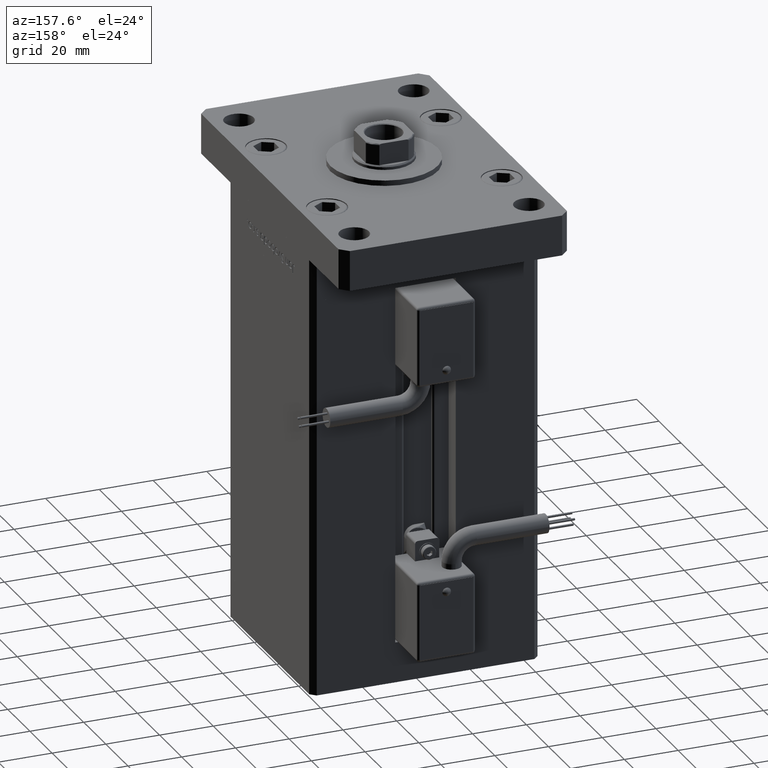
[diagram: clean part render]
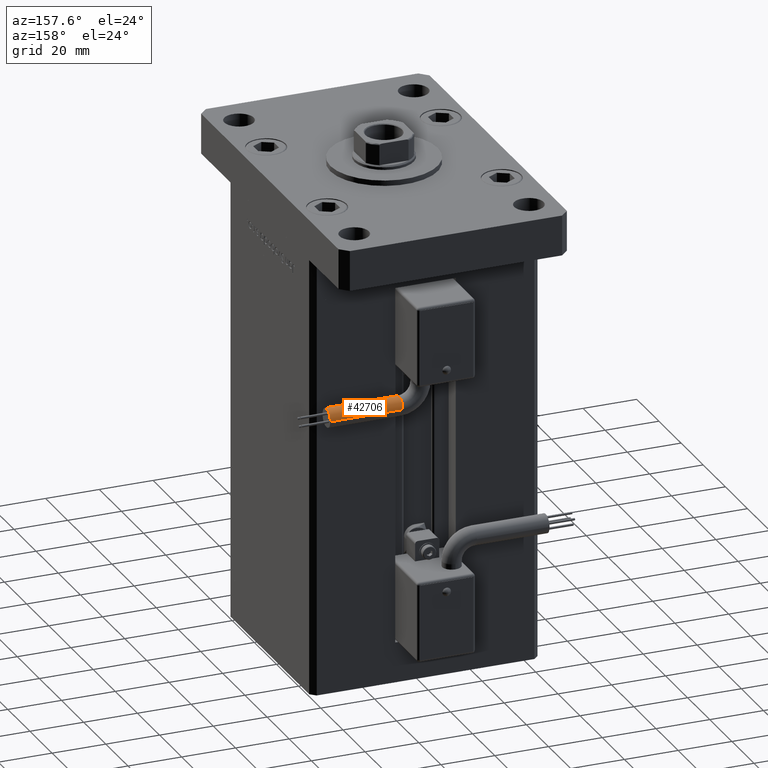
[diagram: same view with one face highlighted and labeled with its STEP entity id]
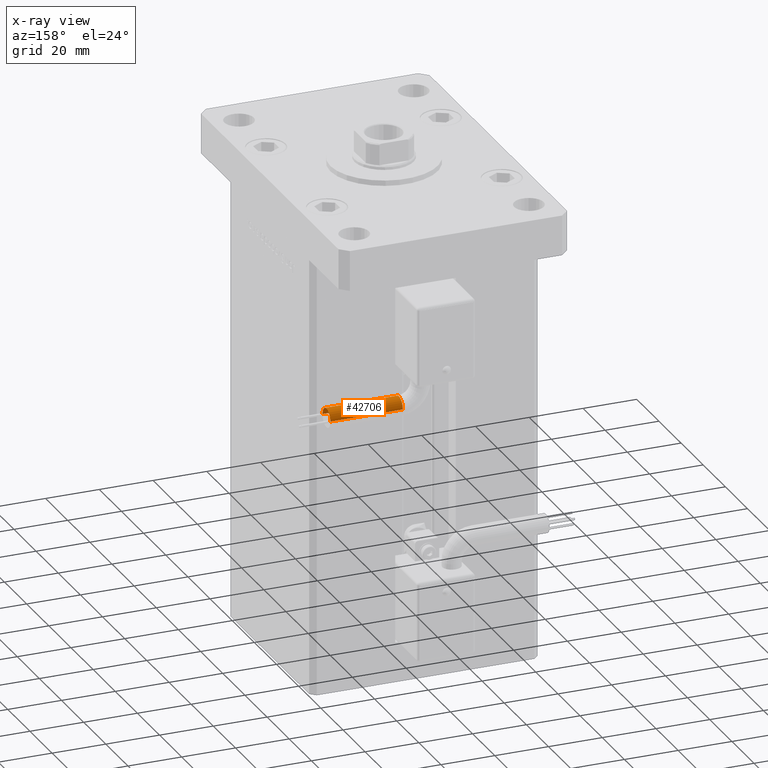
[diagram: x-ray of the same camera — body ghosted, the highlighted face saturated]
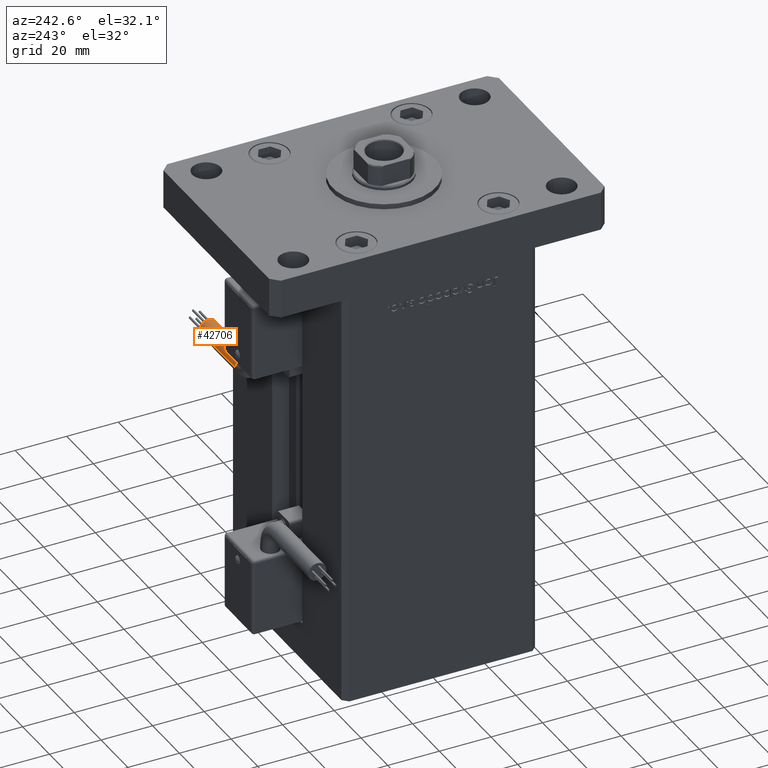
[diagram: same view with one face highlighted and labeled with its STEP entity id]
A machine part, auxiliary view. The second image highlights one B-rep face of the part: STEP entity #42706.
The next image is the same camera in x-ray: the body ghosted, the highlighted face saturated — about 0% of this face is hidden behind the body in this view.
A second angle (auxiliary view) of the same face is appended — the face is thin or edge-on in the first view.
In plain terms, the highlighted cylindrical surface (edge-blend (fillet) strip) has radius 3.5 mm, axis along (1, -0, 0).
Its self-contained STEP definition (entity closure, byte-faithful):
#2065 = ORIENTED_EDGE ( 'NONE', *, *, #8979, .T. ) ;
#2188 = CARTESIAN_POINT ( 'NONE',  ( 40.80000000000000426, 42.00000000000000000, -65.00000000000000000 ) ) ;
#4094 = DIRECTION ( 'NONE',  ( 1.000000000000000000, -2.599999999999999847E-16, 2.220446049250000002E-16 ) ) ;
#4219 = EDGE_LOOP ( 'NONE', ( #17594, #2065, #42347, #41928, #49475 ) ) ;
#6278 = DIRECTION ( 'NONE',  ( 0.000000000000000000, 0.000000000000000000, -1.000000000000000000 ) ) ;
#8681 = CARTESIAN_POINT ( 'NONE',  ( 13.80000000000000071, 45.50000000000000711, -65.00000000000000000 ) ) ;
#8979 = EDGE_CURVE ( 'NONE', #32840, #15725, #11097, .T. ) ;
#11097 = CIRCLE ( 'NONE', #22104, 3.500000000000003109 ) ;
#12693 = LINE ( 'NONE', #8681, #56688 ) ;
#15725 = VERTEX_POINT ( 'NONE', #39714 ) ;
#17594 = ORIENTED_EDGE ( 'NONE', *, *, #50807, .F. ) ;
#19018 = AXIS2_PLACEMENT_3D ( 'NONE', #49826, #45528, #6278 ) ;
#21549 = LINE ( 'NONE', #30433, #37989 ) ;
#22104 = AXIS2_PLACEMENT_3D ( 'NONE', #26114, #48179, #43596 ) ;
#22715 = CYLINDRICAL_SURFACE ( 'NONE', #35424, 3.500000000000003109 ) ;
#24484 = CARTESIAN_POINT ( 'NONE',  ( 40.80000000000000426, 45.50000000000000711, -65.00000000000000000 ) ) ;
#24777 = DIRECTION ( 'NONE',  ( 0.000000000000000000, 0.000000000000000000, -1.000000000000000000 ) ) ;
#26114 = CARTESIAN_POINT ( 'NONE',  ( 13.79999999999999893, 42.00000000000000000, -65.00000000000000000 ) ) ;
#30433 = CARTESIAN_POINT ( 'NONE',  ( 13.79999999999999716, 38.50000000000000000, -65.00000000000000000 ) ) ;
#31604 = DIRECTION ( 'NONE',  ( -4.956352788505158337E-16, -1.000000000000000000, 0.000000000000000000 ) ) ;
#32107 = DIRECTION ( 'NONE',  ( 1.000000000000000000, -2.599999999999999847E-16, 2.220446049250000002E-16 ) ) ;
#32840 = VERTEX_POINT ( 'NONE', #35892 ) ;
#33668 = VERTEX_POINT ( 'NONE', #24484 ) ;
#35424 = AXIS2_PLACEMENT_3D ( 'NONE', #39637, #52825, #31604 ) ;
#35892 = CARTESIAN_POINT ( 'NONE',  ( 13.79999999999999893, 45.50000000000000711, -65.00000000000000000 ) ) ;
#36547 = CARTESIAN_POINT ( 'NONE',  ( 13.79999999999999893, 38.50000000000000000, -65.00000000000000000 ) ) ;
#37336 = AXIS2_PLACEMENT_3D ( 'NONE', #2188, #42261, #24777 ) ;
#37989 = VECTOR ( 'NONE', #4094, 1000.000000000000000 ) ;
#38408 = EDGE_CURVE ( 'NONE', #56689, #54007, #21549, .T. ) ;
#39637 = CARTESIAN_POINT ( 'NONE',  ( 13.79999999999999893, 42.00000000000000000, -65.00000000000000000 ) ) ;
#39714 = CARTESIAN_POINT ( 'NONE',  ( 13.79999999999999893, 41.99999999999999289, -61.50000000000000000 ) ) ;
#39883 = CARTESIAN_POINT ( 'NONE',  ( 40.80000000000000426, 38.50000000000000000, -65.00000000000000000 ) ) ;
#40480 = FACE_OUTER_BOUND ( 'NONE', #4219, .T. ) ;
#41926 = CIRCLE ( 'NONE', #37336, 3.500000000000003109 ) ;
#41928 = ORIENTED_EDGE ( 'NONE', *, *, #38408, .T. ) ;
#42261 = DIRECTION ( 'NONE',  ( 1.000000000000000000, 0.000000000000000000, 2.220446049250000002E-16 ) ) ;
#42347 = ORIENTED_EDGE ( 'NONE', *, *, #48058, .T. ) ;
#42706 = ADVANCED_FACE ( 'NONE', ( #40480 ), #22715, .T. ) ;
#42828 = CIRCLE ( 'NONE', #19018, 3.500000000000003109 ) ;
#43596 = DIRECTION ( 'NONE',  ( 0.000000000000000000, 0.000000000000000000, -1.000000000000000000 ) ) ;
#45528 = DIRECTION ( 'NONE',  ( 1.000000000000000000, 0.000000000000000000, 2.220446049250000002E-16 ) ) ;
#47449 = EDGE_CURVE ( 'NONE', #33668, #54007, #41926, .T. ) ;
#48058 = EDGE_CURVE ( 'NONE', #15725, #56689, #42828, .T. ) ;
#48179 = DIRECTION ( 'NONE',  ( 1.000000000000000000, 0.000000000000000000, 2.220446049250000002E-16 ) ) ;
#49475 = ORIENTED_EDGE ( 'NONE', *, *, #47449, .F. ) ;
#49826 = CARTESIAN_POINT ( 'NONE',  ( 13.79999999999999893, 42.00000000000000000, -65.00000000000000000 ) ) ;
#50807 = EDGE_CURVE ( 'NONE', #32840, #33668, #12693, .T. ) ;
#52825 = DIRECTION ( 'NONE',  ( 1.000000000000000000, -2.599999999999999847E-16, 2.220446049250000002E-16 ) ) ;
#54007 = VERTEX_POINT ( 'NONE', #39883 ) ;
#56688 = VECTOR ( 'NONE', #32107, 1000.000000000000000 ) ;
#56689 = VERTEX_POINT ( 'NONE', #36547 ) ;